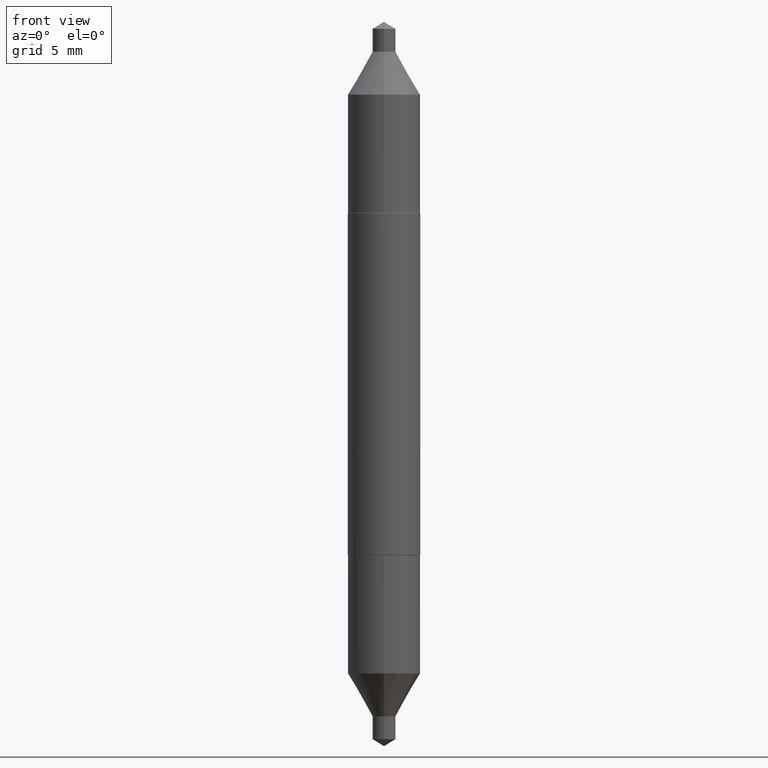
[diagram: clean part render]
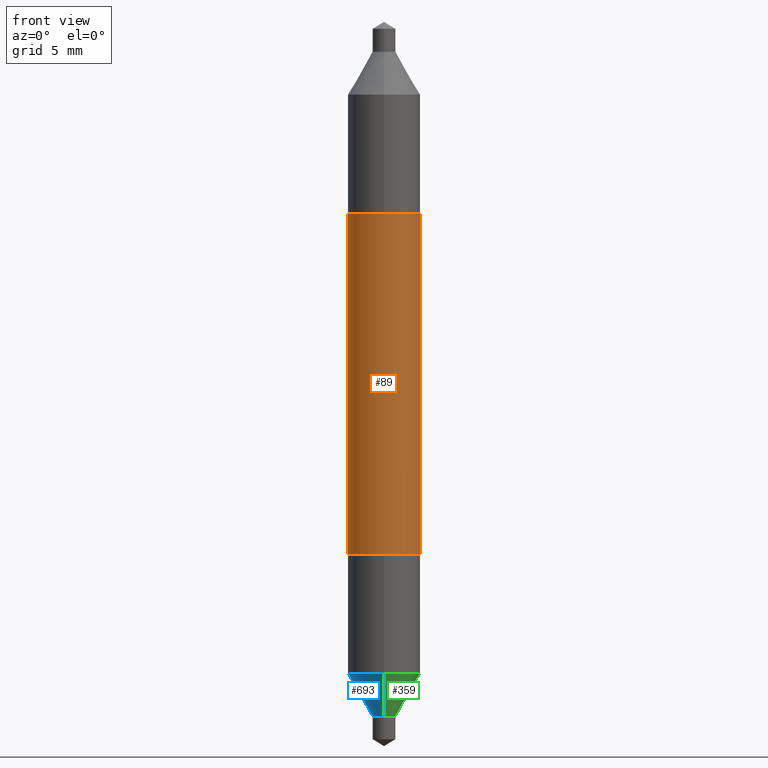
[diagram: same view with three faces highlighted in distinct colors, each labeled with its STEP entity id]
A machine part, front view with three faces highlighted in distinct colors.
Their STEP definitions:

[orange] entity #89 — the highlighted cylindrical surface (edge-blend (fillet) strip) has radius 1.5748 mm, axis along (-0, 0, 1).
#8 = FACE_OUTER_BOUND ( 'NONE', #542, .T. ) ;
#12 = CARTESIAN_POINT ( 'NONE',  ( 0.000000000000000000, 0.000000000000000000, 0.000000000000000000 ) ) ;
#26 = CARTESIAN_POINT ( 'NONE',  ( -0.06200000000000004813, 4.405364961712623586E-16, 0.2924999999999998712 ) ) ;
#41 = VERTEX_POINT ( 'NONE', #493 ) ;
#67 = DIRECTION ( 'NONE',  ( 1.000000000000000000, -6.982962677686265922E-15, 0.000000000000000000 ) ) ;
#74 = ORIENTED_EDGE ( 'NONE', *, *, #193, .T. ) ;
#89 = ADVANCED_FACE ( 'NONE', ( #8 ), #600, .T. ) ;
#105 = LINE ( 'NONE', #208, #640 ) ;
#107 = ORIENTED_EDGE ( 'NONE', *, *, #175, .T. ) ;
#113 = VERTEX_POINT ( 'NONE', #302 ) ;
#117 = CIRCLE ( 'NONE', #689, 0.06200000000000004119 ) ;
#140 = LINE ( 'NONE', #677, #662 ) ;
#165 = AXIS2_PLACEMENT_3D ( 'NONE', #12, #330, #487 ) ;
#175 = EDGE_CURVE ( 'NONE', #492, #113, #140, .T. ) ;
#193 = EDGE_CURVE ( 'NONE', #41, #492, #447, .T. ) ;
#208 = CARTESIAN_POINT ( 'NONE',  ( -0.06200000000000003425, 4.405364961712623586E-16, -3.049739755958042975E-30 ) ) ;
#257 = ORIENTED_EDGE ( 'NONE', *, *, #291, .F. ) ;
#265 = EDGE_CURVE ( 'NONE', #431, #113, #117, .T. ) ;
#291 = EDGE_CURVE ( 'NONE', #41, #431, #105, .T. ) ;
#302 = CARTESIAN_POINT ( 'NONE',  ( 0.06200000000000004119, 5.883146055950708615E-16, 0.2924999999999998712 ) ) ;
#330 = DIRECTION ( 'NONE',  ( -2.445468806185136597E-29, 3.491481338843145583E-15, 1.000000000000000000 ) ) ;
#345 = AXIS2_PLACEMENT_3D ( 'NONE', #523, #698, #572 ) ;
#401 = DIRECTION ( 'NONE',  ( -2.445468806185136877E-29, 3.491481338843145188E-15, 1.000000000000000000 ) ) ;
#431 = VERTEX_POINT ( 'NONE', #26 ) ;
#447 = CIRCLE ( 'NONE', #345, 0.06200000000000004119 ) ;
#482 = ORIENTED_EDGE ( 'NONE', *, *, #265, .F. ) ;
#487 = DIRECTION ( 'NONE',  ( 1.000000000000000000, -6.982962677686266711E-15, 4.876176775795935793E-29 ) ) ;
#490 = DIRECTION ( 'NONE',  ( -2.445468806185136597E-29, 3.491481338843145583E-15, 1.000000000000000000 ) ) ;
#492 = VERTEX_POINT ( 'NONE', #614 ) ;
#493 = CARTESIAN_POINT ( 'NONE',  ( -0.06200000000000004119, -5.807217954403571159E-16, -0.2924999999999998712 ) ) ;
#523 = CARTESIAN_POINT ( 'NONE',  ( 7.152996258091520958E-30, -1.021258291611619622E-15, -0.2924999999999998712 ) ) ;
#538 = CARTESIAN_POINT ( 'NONE',  ( -7.152996258091520958E-30, 1.021258291611619622E-15, 0.2924999999999998712 ) ) ;
#542 = EDGE_LOOP ( 'NONE', ( #257, #74, #107, #482 ) ) ;
#572 = DIRECTION ( 'NONE',  ( 1.000000000000000000, -6.982962677686265922E-15, 0.000000000000000000 ) ) ;
#590 = DIRECTION ( 'NONE',  ( -2.445468806185136877E-29, 3.491481338843145188E-15, 1.000000000000000000 ) ) ;
#600 = CYLINDRICAL_SURFACE ( 'NONE', #165, 0.06200000000000003425 ) ;
#614 = CARTESIAN_POINT ( 'NONE',  ( 0.06200000000000004119, -1.454201977628168285E-15, -0.2924999999999998712 ) ) ;
#640 = VECTOR ( 'NONE', #590, 39.37007874015748143 ) ;
#662 = VECTOR ( 'NONE', #401, 39.37007874015748143 ) ;
#677 = CARTESIAN_POINT ( 'NONE',  ( 0.06200000000000003425, -4.329436860165487609E-16, 3.023229600993481719E-30 ) ) ;
#689 = AXIS2_PLACEMENT_3D ( 'NONE', #538, #490, #67 ) ;
#698 = DIRECTION ( 'NONE',  ( -2.445468806185136597E-29, 3.491481338843145583E-15, 1.000000000000000000 ) ) ;

[blue] entity #693 — the highlighted conical surface has half-angle 30 deg.
#7 = ORIENTED_EDGE ( 'NONE', *, *, #272, .F. ) ;
#18 = DIRECTION ( 'NONE',  ( 3.552713678800440581E-15, 0.4999999999999975575, 0.8660254037844400399 ) ) ;
#35 = VECTOR ( 'NONE', #191, 39.37007874015748854 ) ;
#39 = CARTESIAN_POINT ( 'NONE',  ( -1.375643647504053107E-16, -0.01970000000000195553, -0.5687999999999998613 ) ) ;
#70 = AXIS2_PLACEMENT_3D ( 'NONE', #549, #286, #384 ) ;
#72 = DIRECTION ( 'NONE',  ( -6.982962677686265922E-15, -1.000000000000000000, 3.304654831045479413E-15 ) ) ;
#75 = CARTESIAN_POINT ( 'NONE',  ( -1.375643647504053107E-16, -0.01970000000000195553, -0.5687999999999998613 ) ) ;
#88 = LINE ( 'NONE', #39, #35 ) ;
#96 = ORIENTED_EDGE ( 'NONE', *, *, #507, .F. ) ;
#146 = VERTEX_POINT ( 'NONE', #679 ) ;
#191 = DIRECTION ( 'NONE',  ( -3.491481338843116000E-15, -0.4999999999999914513, 0.8660254037844434816 ) ) ;
#244 = AXIS2_PLACEMENT_3D ( 'NONE', #671, #559, #675 ) ;
#269 = VERTEX_POINT ( 'NONE', #75 ) ;
#272 = EDGE_CURVE ( 'NONE', #364, #146, #383, .T. ) ;
#286 = DIRECTION ( 'NONE',  ( -2.479466242758017580E-29, 3.442795074656859264E-15, 1.000000000000000000 ) ) ;
#303 = CIRCLE ( 'NONE', #70, 0.01969999999999998488 ) ;
#331 = EDGE_LOOP ( 'NONE', ( #7, #683, #509, #96 ) ) ;
#364 = VERTEX_POINT ( 'NONE', #379 ) ;
#379 = CARTESIAN_POINT ( 'NONE',  ( 1.399769189447545683E-16, 0.01969999999999801424, -0.5687999999999999723 ) ) ;
#383 = LINE ( 'NONE', #602, #676 ) ;
#384 = DIRECTION ( 'NONE',  ( -6.982962677686265133E-15, -1.000000000000000000, 3.466812174700844249E-15 ) ) ;
#434 = EDGE_CURVE ( 'NONE', #364, #269, #303, .T. ) ;
#497 = AXIS2_PLACEMENT_3D ( 'NONE', #545, #500, #72 ) ;
#500 = DIRECTION ( 'NONE',  ( -2.479466242758017580E-29, 3.442795074656859264E-15, 1.000000000000000000 ) ) ;
#507 = EDGE_CURVE ( 'NONE', #146, #513, #563, .T. ) ;
#509 = ORIENTED_EDGE ( 'NONE', *, *, #585, .T. ) ;
#513 = VERTEX_POINT ( 'NONE', #543 ) ;
#517 = FACE_OUTER_BOUND ( 'NONE', #331, .T. ) ;
#543 = CARTESIAN_POINT ( 'NONE',  ( -4.329436860165363363E-16, -0.06200000000000172734, -0.4955342508398351553 ) ) ;
#545 = CARTESIAN_POINT ( 'NONE',  ( 1.218699198171901377E-29, -1.720287953521743854E-15, -0.4955342508398353774 ) ) ;
#549 = CARTESIAN_POINT ( 'NONE',  ( 1.400359149964906176E-29, -1.972526913871403021E-15, -0.5687999999999999723 ) ) ;
#559 = DIRECTION ( 'NONE',  ( -2.479466242758017580E-29, 3.442795074656859264E-15, 1.000000000000000000 ) ) ;
#563 = CIRCLE ( 'NONE', #497, 0.06200000000000000649 ) ;
#585 = EDGE_CURVE ( 'NONE', #269, #513, #88, .T. ) ;
#602 = CARTESIAN_POINT ( 'NONE',  ( 1.399769189447536068E-16, 0.01969999999999801424, -0.5687999999999999723 ) ) ;
#637 = CONICAL_SURFACE ( 'NONE', #244, 0.01969999999999998488, 0.5235987755982925984 ) ;
#671 = CARTESIAN_POINT ( 'NONE',  ( 1.400359149964906176E-29, -1.972526913871403021E-15, -0.5687999999999999723 ) ) ;
#675 = DIRECTION ( 'NONE',  ( -6.982962677686265133E-15, -1.000000000000000000, 3.466812174700844249E-15 ) ) ;
#676 = VECTOR ( 'NONE', #18, 39.37007874015748143 ) ;
#679 = CARTESIAN_POINT ( 'NONE',  ( 4.405364961712718249E-16, 0.06199999999999829259, -0.4955342508398355439 ) ) ;
#683 = ORIENTED_EDGE ( 'NONE', *, *, #434, .T. ) ;
#693 = ADVANCED_FACE ( 'NONE', ( #517 ), #637, .T. ) ;

[green] entity #359 — the highlighted conical surface has half-angle 30 deg.
#18 = DIRECTION ( 'NONE',  ( 3.552713678800440581E-15, 0.4999999999999975575, 0.8660254037844400399 ) ) ;
#35 = VECTOR ( 'NONE', #191, 39.37007874015748854 ) ;
#39 = CARTESIAN_POINT ( 'NONE',  ( -1.375643647504053107E-16, -0.01970000000000195553, -0.5687999999999998613 ) ) ;
#44 = AXIS2_PLACEMENT_3D ( 'NONE', #652, #102, #582 ) ;
#64 = ORIENTED_EDGE ( 'NONE', *, *, #585, .F. ) ;
#75 = CARTESIAN_POINT ( 'NONE',  ( -1.375643647504053107E-16, -0.01970000000000195553, -0.5687999999999998613 ) ) ;
#88 = LINE ( 'NONE', #39, #35 ) ;
#92 = DIRECTION ( 'NONE',  ( -2.479466242758017580E-29, 3.442795074656859264E-15, 1.000000000000000000 ) ) ;
#93 = DIRECTION ( 'NONE',  ( -6.982962677686265133E-15, -1.000000000000000000, 3.466812174700844249E-15 ) ) ;
#102 = DIRECTION ( 'NONE',  ( -2.479466242758017580E-29, 3.442795074656859264E-15, 1.000000000000000000 ) ) ;
#146 = VERTEX_POINT ( 'NONE', #679 ) ;
#160 = DIRECTION ( 'NONE',  ( -2.479466242758017580E-29, 3.442795074656859264E-15, 1.000000000000000000 ) ) ;
#172 = ORIENTED_EDGE ( 'NONE', *, *, #642, .F. ) ;
#177 = EDGE_LOOP ( 'NONE', ( #680, #567, #172, #64 ) ) ;
#191 = DIRECTION ( 'NONE',  ( -3.491481338843116000E-15, -0.4999999999999914513, 0.8660254037844434816 ) ) ;
#214 = EDGE_CURVE ( 'NONE', #269, #364, #633, .T. ) ;
#255 = DIRECTION ( 'NONE',  ( -6.982962677686265922E-15, -1.000000000000000000, 3.304654831045479413E-15 ) ) ;
#269 = VERTEX_POINT ( 'NONE', #75 ) ;
#272 = EDGE_CURVE ( 'NONE', #364, #146, #383, .T. ) ;
#340 = CONICAL_SURFACE ( 'NONE', #44, 0.01969999999999998488, 0.5235987755982925984 ) ;
#359 = ADVANCED_FACE ( 'NONE', ( #415 ), #340, .T. ) ;
#364 = VERTEX_POINT ( 'NONE', #379 ) ;
#379 = CARTESIAN_POINT ( 'NONE',  ( 1.399769189447545683E-16, 0.01969999999999801424, -0.5687999999999999723 ) ) ;
#383 = LINE ( 'NONE', #602, #676 ) ;
#415 = FACE_OUTER_BOUND ( 'NONE', #177, .T. ) ;
#420 = CARTESIAN_POINT ( 'NONE',  ( 1.400359149964906176E-29, -1.972526913871403021E-15, -0.5687999999999999723 ) ) ;
#457 = CIRCLE ( 'NONE', #552, 0.06200000000000000649 ) ;
#502 = AXIS2_PLACEMENT_3D ( 'NONE', #420, #160, #93 ) ;
#513 = VERTEX_POINT ( 'NONE', #543 ) ;
#543 = CARTESIAN_POINT ( 'NONE',  ( -4.329436860165363363E-16, -0.06200000000000172734, -0.4955342508398351553 ) ) ;
#552 = AXIS2_PLACEMENT_3D ( 'NONE', #625, #92, #255 ) ;
#567 = ORIENTED_EDGE ( 'NONE', *, *, #272, .T. ) ;
#582 = DIRECTION ( 'NONE',  ( -6.982962677686265133E-15, -1.000000000000000000, 3.466812174700844249E-15 ) ) ;
#585 = EDGE_CURVE ( 'NONE', #269, #513, #88, .T. ) ;
#602 = CARTESIAN_POINT ( 'NONE',  ( 1.399769189447536068E-16, 0.01969999999999801424, -0.5687999999999999723 ) ) ;
#625 = CARTESIAN_POINT ( 'NONE',  ( 1.218699198171901377E-29, -1.720287953521743854E-15, -0.4955342508398353774 ) ) ;
#633 = CIRCLE ( 'NONE', #502, 0.01969999999999998488 ) ;
#642 = EDGE_CURVE ( 'NONE', #513, #146, #457, .T. ) ;
#652 = CARTESIAN_POINT ( 'NONE',  ( 1.400359149964906176E-29, -1.972526913871403021E-15, -0.5687999999999999723 ) ) ;
#676 = VECTOR ( 'NONE', #18, 39.37007874015748143 ) ;
#679 = CARTESIAN_POINT ( 'NONE',  ( 4.405364961712718249E-16, 0.06199999999999829259, -0.4955342508398355439 ) ) ;
#680 = ORIENTED_EDGE ( 'NONE', *, *, #214, .T. ) ;